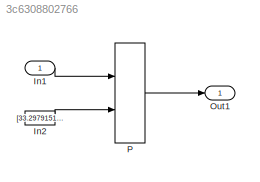
MODEL slx_3c6308802766
KIND model
CONFIG AbsTol = auto
CONFIG EnableMultiTasking = off
CONFIG FixedStep = auto
CONFIG MaxStep = auto
CONFIG MinStep = auto
CONFIG RelTol = 1e-3
CONFIG SampleTimeConstraint = Unconstrained
CONFIG Solver = FixedStepDiscrete
CONFIG SolverName = FixedStepDiscrete
CONFIG StartTime = 0.0
CONFIG StopTime = 10.0
BLOCK [Inport] In1
  IconDisplay = Port number
  OutDataTypeStr = int8
  PortDimensions = 1
BLOCK [Constant] In2
  Value = [33.2979151713952 34.7979151713952 36.2979151713952 37.7979151713952 39.2979151713952 40.7979151713952 42.2979151713952 43.7979151713952 45.2979151713952 46.7979151713952 48.2979151713952 49.7979151713952 51.2979151713952 52.7979151713952 54.2979151713952 55.7979151713952 57.2979151713952 58.7979151713952 60.2979151713952 61.7979151713952 63.2979151713952 64.7979151713952]
BLOCK [Outport] Out1
  IconDisplay = Port number
BLOCK [PreLookup] P
  BeginIndexSearchUsingPreviousIndexResult = on
  BreakpointDataTypeStr = double
  BreakpointsData = [10:10:110]
  BreakpointsDataSource = Input port
  IndexSearchMethod = Linear search
  InitFcn = elems(1) = Simulink.BusElement;\nelems(1).Name = 'Index';\nelems(1).DataType = 'int8';\nelems(2) = Simulink.BusElement;\nelems(2).Name = 'Fraction';\nelems(2).DataType = 'double';\nkfBus = Simulink.Bus;\nkfBus.Elements = elems;\nclear elems;\nassignin('base', 'kfBus', kfBus);
  InputPortMap = u0,p1
  OutputBusDataTypeStr = Bus: kfBus
  OutputSelection = Index and fraction as bus
  Ports = [2, 1]
  RndMeth = Convergent
LINE In1:1 -> P:1
LINE In2:1 -> P:2
LINE P:1 -> Out1:1
